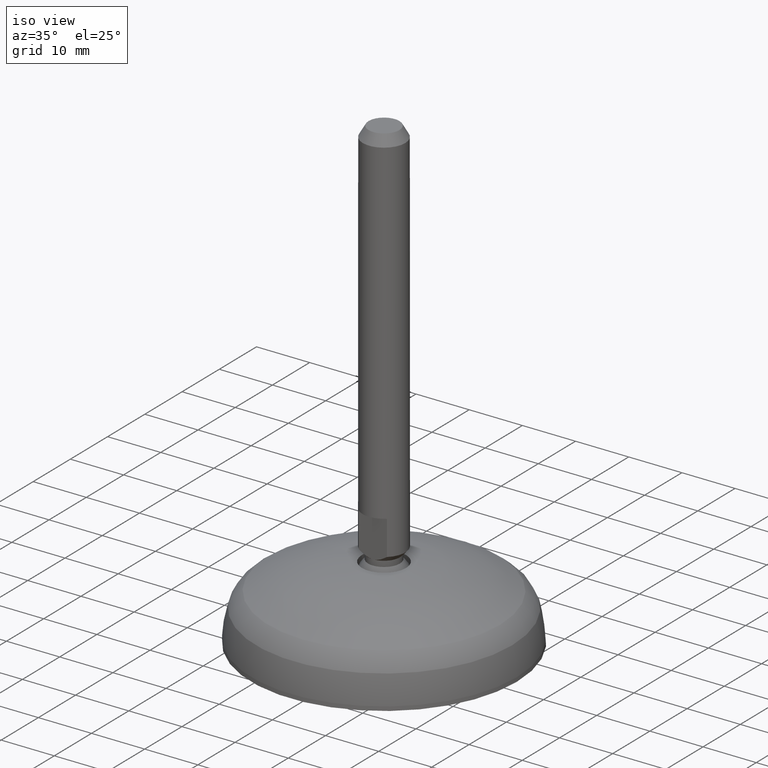
[diagram: clean part render]
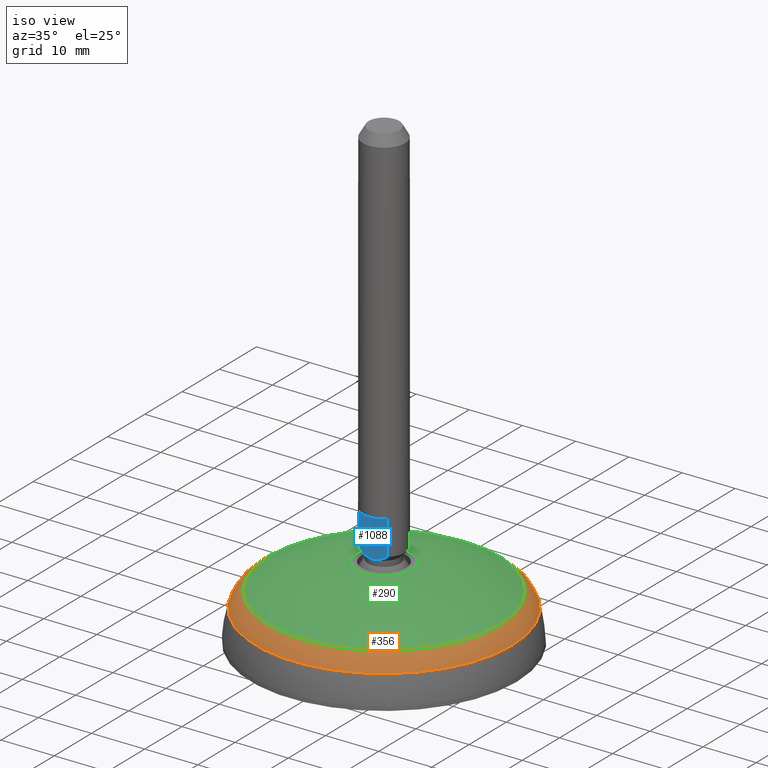
[diagram: same view with three faces highlighted in distinct colors, each labeled with its STEP entity id]
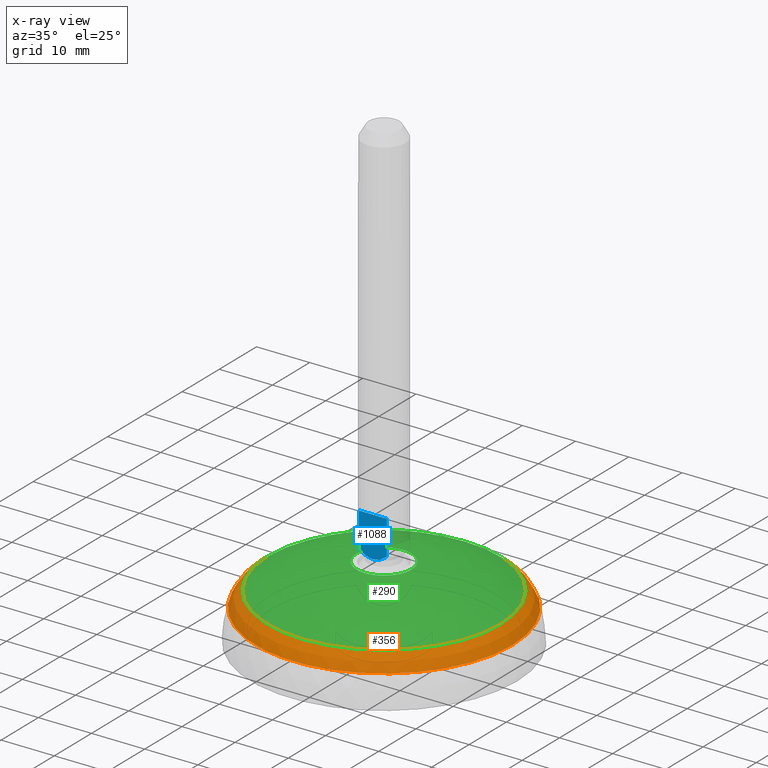
[diagram: x-ray of the same camera — body ghosted, the three highlighted faces saturated]
A machine part, iso view with three faces highlighted in distinct colors.
The next image is the same camera in x-ray (body ghosted, the three faces saturated) — at least one of them is partly hidden behind the body in this view.
Their STEP definitions:

[orange] entity #356 — the highlighted face is a freeform B-spline surface patch.
#260=CARTESIAN_POINT('',(-21.793402771362764,1.289336E-014,8.817078967481198));
#261=VERTEX_POINT('',#260);
#272=CARTESIAN_POINT('',(21.793402771364818,1.289336E-014,8.817078967480800));
#273=VERTEX_POINT('',#272);
#274=CARTESIAN_POINT('',(1.137990E-012,1.289336E-014,8.817078967480800));
#275=DIRECTION('',(0.0,0.0,-1.0));
#276=DIRECTION('',(-1.0,0.0,0.0));
#277=AXIS2_PLACEMENT_3D('',#274,#275,#276);
#278=CIRCLE('',#277,21.793402771363681);
#279=EDGE_CURVE('',#273,#261,#278,.T.);
#281=CARTESIAN_POINT('',(1.137990E-012,1.289336E-014,8.817078967480800));
#282=DIRECTION('',(0.0,0.0,-1.0));
#283=DIRECTION('',(-1.0,0.0,0.0));
#284=AXIS2_PLACEMENT_3D('',#281,#282,#283);
#285=CIRCLE('',#284,21.793402771363681);
#286=EDGE_CURVE('',#261,#273,#285,.T.);
#291=CARTESIAN_POINT('',(-21.793402488715955,0.000001232821006,8.817079128977806));
#292=CARTESIAN_POINT('',(-23.508953915569194,0.000001329867248,7.836860381364649));
#293=CARTESIAN_POINT('',(-24.091013132568065,0.000001362793489,5.948699223185308));
#294=CARTESIAN_POINT('',(-21.793403721537018,-21.793402488716264,8.817079128977804));
#295=CARTESIAN_POINT('',(-23.508955245436503,-23.508953915569503,7.836860381364646));
#296=CARTESIAN_POINT('',(-24.091014495361620,-24.091013132568374,5.948699223185306));
#297=CARTESIAN_POINT('',(2.879641E-013,-21.793402488716257,8.817079128977804));
#298=CARTESIAN_POINT('',(2.879641E-013,-23.508953915569496,7.836860381364650));
#299=CARTESIAN_POINT('',(2.879641E-013,-24.091013132568371,5.948699223185307));
#300=CARTESIAN_POINT('',(21.793402488716563,-21.793402488716264,8.817079128977804));
#301=CARTESIAN_POINT('',(23.508953915569798,-23.508953915569499,7.836860381364647));
#302=CARTESIAN_POINT('',(24.091013132568673,-24.091013132568374,5.948699223185306));
#303=CARTESIAN_POINT('',(21.793402488716559,1.289336E-014,8.817079128977804));
#304=CARTESIAN_POINT('',(23.508953915569798,1.289336E-014,7.836860381364650));
#305=CARTESIAN_POINT('',(24.091013132568673,1.289336E-014,5.948699223185307));
#306=CARTESIAN_POINT('',(21.793402488716563,21.793402488716293,8.817079128977804));
#307=CARTESIAN_POINT('',(23.508953915569798,23.508953915569531,7.836860381364647));
#308=CARTESIAN_POINT('',(24.091013132568673,24.091013132568403,5.948699223185306));
#309=CARTESIAN_POINT('',(2.879641E-013,21.793402488716289,8.817079128977804));
#310=CARTESIAN_POINT('',(2.879641E-013,23.508953915569531,7.836860381364650));
#311=CARTESIAN_POINT('',(2.879641E-013,24.091013132568403,5.948699223185307));
#312=CARTESIAN_POINT('',(-21.793403721537018,21.793402488716293,8.817079128977804));
#313=CARTESIAN_POINT('',(-23.508955245436503,23.508953915569531,7.836860381364646));
#314=CARTESIAN_POINT('',(-24.091014495361620,24.091013132568406,5.948699223185306));
#315=CARTESIAN_POINT('',(-21.793402488715952,-0.000001232820980,8.817079128977801));
#316=CARTESIAN_POINT('',(-23.508953915569187,-0.000001329867222,7.836860381364645));
#317=CARTESIAN_POINT('',(-24.091013132568058,-0.000001362793463,5.948699223185305));
#325=(BOUNDED_SURFACE()B_SPLINE_SURFACE(2,2,((#291,#294,#297,#300,#303,#306,#309,#312,#315),(#292,#295,#298,#301,#304,#307,#310,#313,#316),(#293,#296,#299,#302,#305,#308,#311,#314,#317)),.UNSPECIFIED.,.F.,.T.,.U.)B_SPLINE_SURFACE_WITH_KNOTS((3,3),(3,2,2,2,3),(0.834580139978544,0.949869896395462),(-1.000000E-008,0.250000000000000,0.500000000000000,0.750000000000000,1.000000010000000),.UNSPECIFIED.)GEOMETRIC_REPRESENTATION_ITEM()RATIONAL_B_SPLINE_SURFACE(((0.868866009809125,0.614381022903288,0.868865989450328,0.614381033082686,0.868865989450328,0.614381033082686,0.868865989450328,0.614381022903288,0.868866009809125),(0.825189811208532,0.583497287931708,0.825189791873132,0.583497297599407,0.825189791873132,0.583497297599407,0.825189791873132,0.583497287931708,0.825189811208532),(0.906091438835104,0.640703375147242,0.906091417604061,0.640703385762763,0.906091417604061,0.640703385762763,0.906091417604061,0.640703375147242,0.906091438835104)))REPRESENTATION_ITEM('')SURFACE());
#326=CARTESIAN_POINT('',(-24.091013040610093,1.289336E-014,5.948699521490269));
#327=VERTEX_POINT('',#326);
#328=CARTESIAN_POINT('',(-19.312891608719813,1.289336E-014,4.475758388210015));
#329=DIRECTION('',(0.0,1.0,0.0));
#330=DIRECTION('',(-1.0,0.0,0.0));
#331=AXIS2_PLACEMENT_3D('',#328,#329,#330);
#332=CIRCLE('',#331,5.0);
#333=EDGE_CURVE('',#327,#261,#332,.T.);
#334=ORIENTED_EDGE('',*,*,#333,.F.);
#335=CARTESIAN_POINT('',(24.091013040611365,1.289336E-014,5.948699521490187));
#336=VERTEX_POINT('',#335);
#337=CARTESIAN_POINT('',(7.677779E-013,1.289336E-014,5.948699521490187));
#338=DIRECTION('',(0.0,0.0,-1.0));
#339=DIRECTION('',(-1.0,0.0,0.0));
#340=AXIS2_PLACEMENT_3D('',#337,#338,#339);
#341=CIRCLE('',#340,24.091013040610598);
#342=EDGE_CURVE('',#336,#327,#341,.T.);
#343=ORIENTED_EDGE('',*,*,#342,.F.);
#344=CARTESIAN_POINT('',(7.677779E-013,1.289336E-014,5.948699521490187));
#345=DIRECTION('',(0.0,0.0,-1.0));
#346=DIRECTION('',(-1.0,0.0,0.0));
#347=AXIS2_PLACEMENT_3D('',#344,#345,#346);
#348=CIRCLE('',#347,24.091013040610598);
#349=EDGE_CURVE('',#327,#336,#348,.T.);
#350=ORIENTED_EDGE('',*,*,#349,.F.);
#351=ORIENTED_EDGE('',*,*,#333,.T.);
#352=ORIENTED_EDGE('',*,*,#286,.T.);
#353=ORIENTED_EDGE('',*,*,#279,.T.);
#354=EDGE_LOOP('',(#334,#343,#350,#351,#352,#353));
#355=FACE_OUTER_BOUND('',#354,.T.);
#356=ADVANCED_FACE('',(#355),#325,.T.);

[blue] entity #1088 — the highlighted planar face has unit normal (0, 1, 0).
#610=CARTESIAN_POINT('',(-2.645763705205930,-3.000003166976640,16.373944928902979));
#611=VERTEX_POINT('',#610);
#619=CARTESIAN_POINT('',(-2.645758212562657,-3.000003166976640,22.873924181436315));
#620=VERTEX_POINT('',#619);
#621=CARTESIAN_POINT('',(-2.645763705205931,-3.000003166976640,16.373944928902979));
#622=CARTESIAN_POINT('',(-2.645763476346413,-3.000003166976640,16.644776720555505));
#623=CARTESIAN_POINT('',(-2.645763247486892,-3.000003166976640,16.915608512208014));
#624=CARTESIAN_POINT('',(-2.645763018627362,-3.000003166976640,17.186440303860529));
#625=CARTESIAN_POINT('',(-2.645761416606073,-3.000003166976640,19.082268263052459));
#626=CARTESIAN_POINT('',(-2.645759814584460,-3.000003166976640,20.978096222244375));
#627=CARTESIAN_POINT('',(-2.645758212562481,-3.000003166976640,22.873924181436315));
#628=B_SPLINE_CURVE_WITH_KNOTS('',3,(#621,#622,#623,#624,#625,#626,#627),.UNSPECIFIED.,.F.,.U.,(4,3,4),(0.007187548279914,0.008000043654872,0.013687527532449),.UNSPECIFIED.);
#629=EDGE_CURVE('',#611,#620,#628,.T.);
#631=CARTESIAN_POINT('',(2.645807595618447,-3.000003166976640,22.873924181436315));
#632=VERTEX_POINT('',#631);
#640=CARTESIAN_POINT('',(2.645810161909338,-3.000003166976640,16.373943341086665));
#641=VERTEX_POINT('',#640);
#642=CARTESIAN_POINT('',(2.645808570098528,-3.000003166976640,22.873924181436536));
#643=CARTESIAN_POINT('',(2.645809034377124,-3.000003166976640,20.978096293106212));
#644=CARTESIAN_POINT('',(2.645809498655344,-3.000003166976640,19.082268404775878));
#645=CARTESIAN_POINT('',(2.645809962933240,-3.000003166976640,17.186440516445550));
#646=CARTESIAN_POINT('',(2.645810029258613,-3.000003166976640,16.915608124659258));
#647=CARTESIAN_POINT('',(2.645810095583978,-3.000003166976640,16.644775732872965));
#648=CARTESIAN_POINT('',(2.645810161909338,-3.000003166976640,16.373943341086665));
#649=B_SPLINE_CURVE_WITH_KNOTS('',3,(#642,#643,#644,#645,#646,#647,#648),.UNSPECIFIED.,.F.,.U.,(4,3,4),(0.007187546479511,0.012875030144503,0.013687527319862),.UNSPECIFIED.);
#650=EDGE_CURVE('',#632,#641,#649,.T.);
#767=CARTESIAN_POINT('',(0.000022900723891,-3.000003166976639,15.282088125120154));
#768=VERTEX_POINT('',#767);
#769=CARTESIAN_POINT('',(2.645810161909338,-3.000003166976640,16.373943341086665));
#770=CARTESIAN_POINT('',(2.449052385062176,-3.000003166976640,16.231848246258117));
#771=CARTESIAN_POINT('',(2.248140714986093,-3.000003166976641,16.095506315851406));
#772=CARTESIAN_POINT('',(1.836331928544298,-3.000003166976639,15.842490202231241));
#773=CARTESIAN_POINT('',(1.625177923138560,-3.000003166976640,15.725491340728681));
#774=CARTESIAN_POINT('',(1.295794003720764,-3.000003166976640,15.572912647220681));
#775=CARTESIAN_POINT('',(1.183865034061837,-3.000003166976641,15.525919227246073));
#776=CARTESIAN_POINT('',(0.954527240581516,-3.000003166976640,15.441858645018900));
#777=CARTESIAN_POINT('',(0.838098857014977,-3.000003166976641,15.405214842260213));
#778=CARTESIAN_POINT('',(0.603333050748745,-3.000003166976640,15.345341293409188));
#779=CARTESIAN_POINT('',(0.484685251164212,-3.000003166976640,15.322003385576227));
#780=CARTESIAN_POINT('',(0.244506577829598,-3.000003166976640,15.290368344017651));
#781=CARTESIAN_POINT('',(0.122336257458456,-3.000003166976640,15.282088088418220));
#782=CARTESIAN_POINT('',(0.000022900723896,-3.000003166976640,15.282088125120179));
#783=B_SPLINE_CURVE_WITH_KNOTS('',3,(#769,#770,#771,#772,#773,#774,#775,#776,#777,#778,#779,#780,#781,#782),.UNSPECIFIED.,.F.,.U.,(4,2,2,2,2,2,4),(0.0,0.250000000000000,0.500000000000000,0.625000000000000,0.750000000000000,0.875000000000000,1.0),.UNSPECIFIED.);
#784=EDGE_CURVE('',#641,#768,#783,.T.);
#853=CARTESIAN_POINT('',(0.000022900723896,-3.000003166976640,15.282088125120179));
#854=CARTESIAN_POINT('',(-0.244510620325251,-3.000003166976640,15.282088198496140));
#855=CARTESIAN_POINT('',(-0.483895144841706,-3.000003166976641,15.315018730482830));
#856=CARTESIAN_POINT('',(-0.836657742933206,-3.000003166976640,15.404796985077812));
#857=CARTESIAN_POINT('',(-0.953749555995079,-3.000003166976641,15.441630879903929));
#858=CARTESIAN_POINT('',(-1.182267322251259,-3.000003166976640,15.525311666691929));
#859=CARTESIAN_POINT('',(-1.293983288211412,-3.000003166976640,15.572151056906154));
#860=CARTESIAN_POINT('',(-1.623134319354156,-3.000003166976640,15.724458175349042));
#861=CARTESIAN_POINT('',(-1.834663459226262,-3.000003166976639,15.841536074062139));
#862=CARTESIAN_POINT('',(-2.247765547576323,-3.000003166976640,16.095264262499931));
#863=CARTESIAN_POINT('',(-2.449404100328859,-3.000003166976640,16.232137207746934));
#864=CARTESIAN_POINT('',(-2.645763705205929,-3.000003166976640,16.373944928902979));
#865=B_SPLINE_CURVE_WITH_KNOTS('',3,(#853,#854,#855,#856,#857,#858,#859,#860,#861,#862,#863,#864),.UNSPECIFIED.,.F.,.U.,(4,2,2,2,2,4),(0.0,0.250000000000000,0.375000000000000,0.500000000000000,0.750000000000000,1.0),.UNSPECIFIED.);
#866=EDGE_CURVE('',#768,#611,#865,.T.);
#1066=CARTESIAN_POINT('',(-2.645758212562657,-3.000003166976640,22.873924181436315));
#1067=DIRECTION('',(1.0,0.0,0.0));
#1068=VECTOR('',#1067,5.291565808181103);
#1069=LINE('',#1066,#1068);
#1070=EDGE_CURVE('',#620,#632,#1069,.T.);
#1076=CARTESIAN_POINT('',(-2.910342398561694,-3.000003166976640,14.902496322304335));
#1077=DIRECTION('',(0.0,1.0,0.0));
#1078=DIRECTION('',(0.0,0.0,1.0));
#1079=AXIS2_PLACEMENT_3D('',#1076,#1077,#1078);
#1080=PLANE('',#1079);
#1081=ORIENTED_EDGE('',*,*,#1070,.F.);
#1082=ORIENTED_EDGE('',*,*,#629,.F.);
#1083=ORIENTED_EDGE('',*,*,#866,.F.);
#1084=ORIENTED_EDGE('',*,*,#784,.F.);
#1085=ORIENTED_EDGE('',*,*,#650,.F.);
#1086=EDGE_LOOP('',(#1081,#1082,#1083,#1084,#1085));
#1087=FACE_OUTER_BOUND('',#1086,.T.);
#1088=ADVANCED_FACE('',(#1087),#1080,.F.);

[green] entity #290 — the highlighted face is a freeform B-spline surface patch.
#200=CARTESIAN_POINT('',(5.150186058782048,1.289336E-014,13.768304670478818));
#201=VERTEX_POINT('',#200);
#202=CARTESIAN_POINT('',(-5.150186058778494,1.289336E-014,13.768304670478889));
#203=VERTEX_POINT('',#202);
#204=CARTESIAN_POINT('',(1.777027E-012,1.289336E-014,13.768304670478818));
#205=DIRECTION('',(0.0,0.0,-1.0));
#206=DIRECTION('',(-1.0,0.0,0.0));
#207=AXIS2_PLACEMENT_3D('',#204,#205,#206);
#208=CIRCLE('',#207,5.150186058780271);
#209=EDGE_CURVE('',#201,#203,#208,.T.);
#211=CARTESIAN_POINT('',(1.777027E-012,1.289336E-014,13.768304670478818));
#212=DIRECTION('',(0.0,0.0,-1.0));
#213=DIRECTION('',(-1.0,0.0,0.0));
#214=AXIS2_PLACEMENT_3D('',#211,#212,#213);
#215=CIRCLE('',#214,5.150186058780271);
#216=EDGE_CURVE('',#203,#201,#215,.T.);
#225=CARTESIAN_POINT('',(-21.793403888345807,-0.000001232821059,8.817078329268789));
#226=CARTESIAN_POINT('',(-14.051310826230393,-0.000000794862147,13.240697690674939));
#227=CARTESIAN_POINT('',(-5.150184828080017,-0.000000291338431,13.768304743427711));
#228=CARTESIAN_POINT('',(-21.793405121166938,21.793403888344287,8.817078329268789));
#229=CARTESIAN_POINT('',(-14.051311621092582,14.051310826228857,13.240697690674937));
#230=CARTESIAN_POINT('',(-5.150185119418453,5.150184828078471,13.768304743427711));
#231=CARTESIAN_POINT('',(-1.565154E-012,21.793403888344287,8.817078329268787));
#232=CARTESIAN_POINT('',(-1.565154E-012,14.051310826228860,13.240697690674937));
#233=CARTESIAN_POINT('',(-1.565154E-012,5.150184828078473,13.768304743427707));
#234=CARTESIAN_POINT('',(21.793403888342706,21.793403888344276,8.817078329268787));
#235=CARTESIAN_POINT('',(14.051310826227283,14.051310826228846,13.240697690674939));
#236=CARTESIAN_POINT('',(5.150184828076895,5.150184828078449,13.768304743427711));
#237=CARTESIAN_POINT('',(21.793403888342709,1.289336E-014,8.817078329268787));
#238=CARTESIAN_POINT('',(14.051310826227279,1.289336E-014,13.240697690674937));
#239=CARTESIAN_POINT('',(5.150184828076894,1.289336E-014,13.768304743427707));
#240=CARTESIAN_POINT('',(21.793403888342699,-21.793403888344258,8.817078329268787));
#241=CARTESIAN_POINT('',(14.051310826227269,-14.051310826228832,13.240697690674939));
#242=CARTESIAN_POINT('',(5.150184828076871,-5.150184828078446,13.768304743427711));
#243=CARTESIAN_POINT('',(-1.565154E-012,-21.793403888344262,8.817078329268787));
#244=CARTESIAN_POINT('',(-1.565154E-012,-14.051310826228834,13.240697690674937));
#245=CARTESIAN_POINT('',(-1.565154E-012,-5.150184828078445,13.768304743427707));
#246=CARTESIAN_POINT('',(-21.793405121166945,-21.793403888344251,8.817078329268789));
#247=CARTESIAN_POINT('',(-14.051311621092593,-14.051310826228820,13.240697690674937));
#248=CARTESIAN_POINT('',(-5.150185119418477,-5.150184828078422,13.768304743427711));
#249=CARTESIAN_POINT('',(-21.793403888345804,0.000001232821085,8.817078329268785));
#250=CARTESIAN_POINT('',(-14.051310826230388,0.000000794862172,13.240697690674937));
#251=CARTESIAN_POINT('',(-5.150184828080015,0.000000291338457,13.768304743427709));
#259=(BOUNDED_SURFACE()B_SPLINE_SURFACE(2,2,((#225,#228,#231,#234,#237,#240,#243,#246,#249),(#226,#229,#232,#235,#238,#241,#244,#247,#250),(#227,#230,#233,#236,#239,#242,#245,#248,#251)),.UNSPECIFIED.,.F.,.T.,.U.)B_SPLINE_SURFACE_WITH_KNOTS((3,3),(3,2,2,2,3),(0.819645258275359,0.957524451412394),(-1.000000E-008,0.250000000000000,0.500000000000000,0.750000000000000,1.000000010000000),.UNSPECIFIED.)GEOMETRIC_REPRESENTATION_ITEM()RATIONAL_B_SPLINE_SURFACE(((0.927027097930351,0.655507121069951,0.927027076208755,0.655507131930749,0.927027076208755,0.655507131930749,0.927027076208755,0.655507121069951,0.927027097930351),(0.922035441960942,0.651977487425817,0.922035420356307,0.651977498228134,0.922035420356307,0.651977498228134,0.922035420356307,0.651977487425817,0.922035441960942),(0.967324449603097,0.684001650561828,0.967324426937275,0.684001661894738,0.967324426937275,0.684001661894738,0.967324426937275,0.684001650561828,0.967324449603097)))REPRESENTATION_ITEM('')SURFACE());
#260=CARTESIAN_POINT('',(-21.793402771362764,1.289336E-014,8.817078967481198));
#261=VERTEX_POINT('',#260);
#262=CARTESIAN_POINT('',(-2.896321374619646,1.289336E-014,-24.256059178935931));
#263=DIRECTION('',(0.0,-1.0,0.0));
#264=DIRECTION('',(-1.0,0.0,0.0));
#265=AXIS2_PLACEMENT_3D('',#262,#263,#264);
#266=CIRCLE('',#265,38.091103320423706);
#267=EDGE_CURVE('',#203,#261,#266,.T.);
#268=ORIENTED_EDGE('',*,*,#267,.F.);
#269=ORIENTED_EDGE('',*,*,#216,.T.);
#270=ORIENTED_EDGE('',*,*,#209,.T.);
#271=ORIENTED_EDGE('',*,*,#267,.T.);
#272=CARTESIAN_POINT('',(21.793402771364818,1.289336E-014,8.817078967480800));
#273=VERTEX_POINT('',#272);
#274=CARTESIAN_POINT('',(1.137990E-012,1.289336E-014,8.817078967480800));
#275=DIRECTION('',(0.0,0.0,-1.0));
#276=DIRECTION('',(-1.0,0.0,0.0));
#277=AXIS2_PLACEMENT_3D('',#274,#275,#276);
#278=CIRCLE('',#277,21.793402771363681);
#279=EDGE_CURVE('',#273,#261,#278,.T.);
#280=ORIENTED_EDGE('',*,*,#279,.F.);
#281=CARTESIAN_POINT('',(1.137990E-012,1.289336E-014,8.817078967480800));
#282=DIRECTION('',(0.0,0.0,-1.0));
#283=DIRECTION('',(-1.0,0.0,0.0));
#284=AXIS2_PLACEMENT_3D('',#281,#282,#283);
#285=CIRCLE('',#284,21.793402771363681);
#286=EDGE_CURVE('',#261,#273,#285,.T.);
#287=ORIENTED_EDGE('',*,*,#286,.F.);
#288=EDGE_LOOP('',(#268,#269,#270,#271,#280,#287));
#289=FACE_OUTER_BOUND('',#288,.T.);
#290=ADVANCED_FACE('',(#289),#259,.T.);